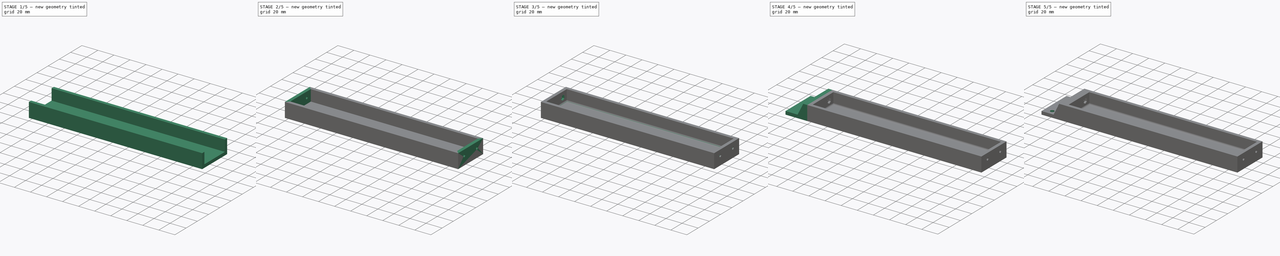
[diagram: build sequence overview — one tinted view per stage of 5, left to right]
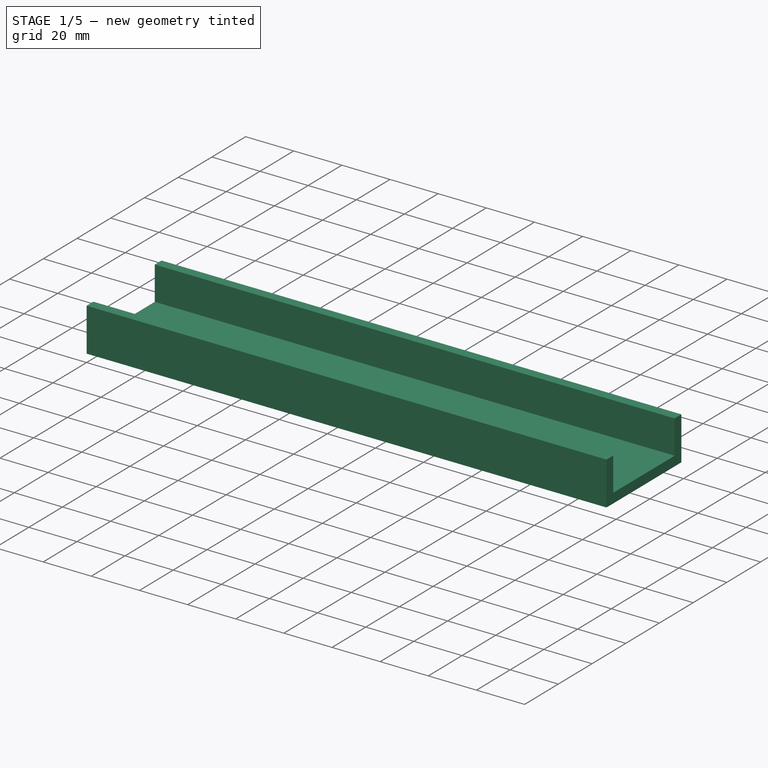
[diagram: stage 1 of 5 — iso view after this stage's code; geometry added in this stage tinted green]
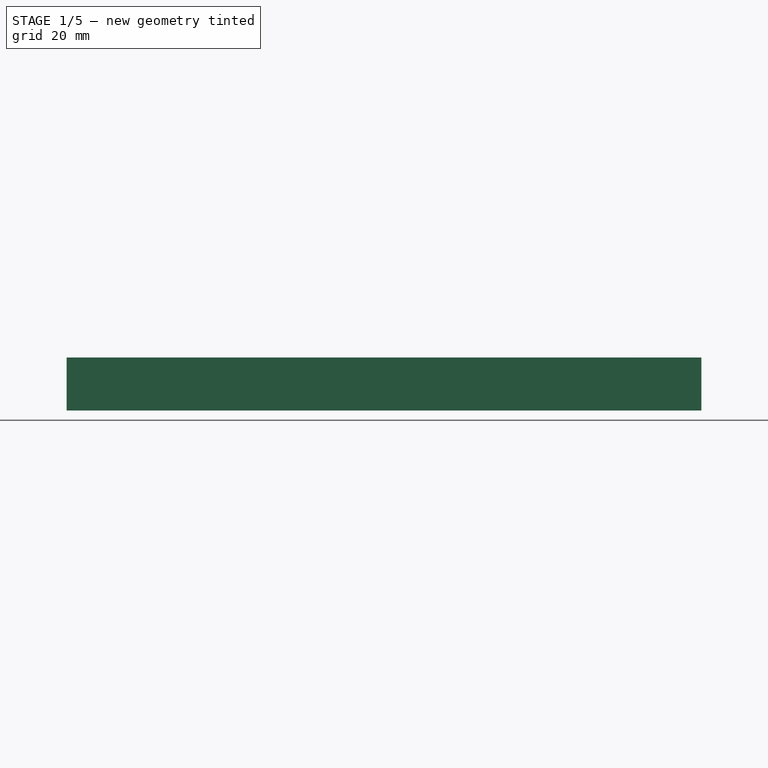
[diagram: stage 1 of 5 — front view after this stage's code; geometry added in this stage tinted green]
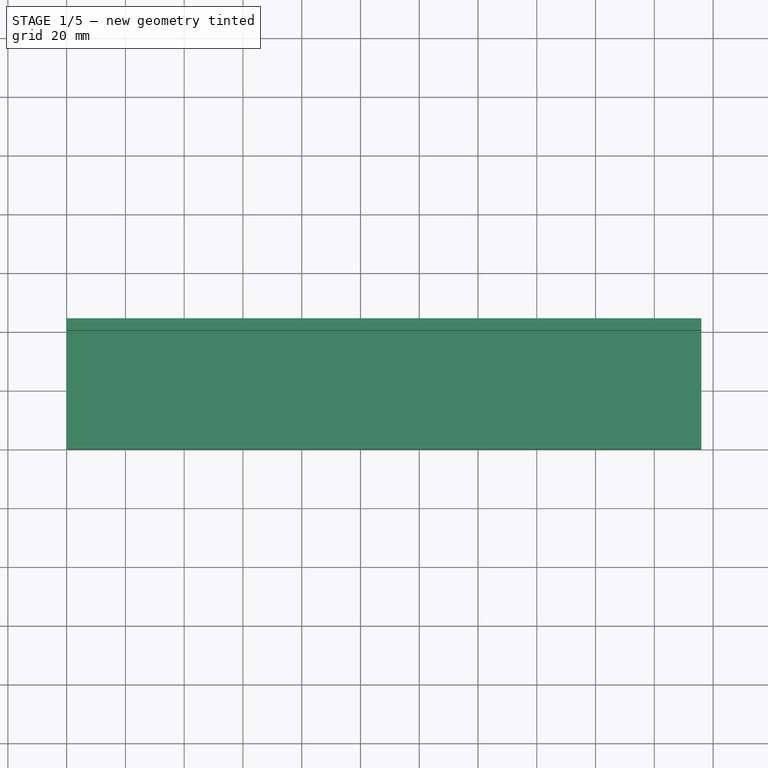
[diagram: stage 1 of 5 — top view after this stage's code; geometry added in this stage tinted green]
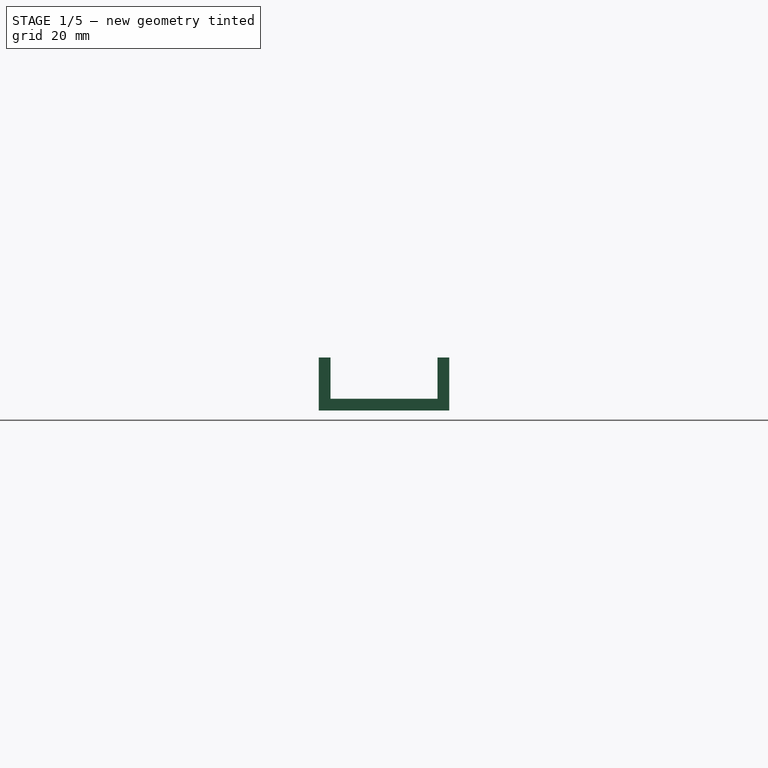
[diagram: stage 1 of 5 — right view after this stage's code; geometry added in this stage tinted green]
FCSTD DOCUMENT  (FreeCAD 1.0R39319 (Git))
Label: BlankPanel
License: All rights reserved
objects: Sketcher::SketchObject×15, PartDesign::Pad×9, PartDesign::Pocket×6, PartDesign::Fillet×2, PartDesign::Body×2, Part::Feature×1
note: 84 computed .brp shape members not serialized (recipe doc carries the construction recipe); baked Part::Feature solids carry a one-line shape summary decoded from their .brp

FEATURE [Sketcher::SketchObject] FacePlateSketch
  ArcFitTolerance = 1e-06
  FullyConstrained = true
  MakeInternals = false
  MapMode = 5
  sketch-geometry (4):
    g0: LineSegment StartX=0 StartY=0 StartZ=0 EndX=216 EndY=0 EndZ=0
    g1: LineSegment StartX=216 StartY=0 StartZ=0 EndX=216 EndY=44.45 EndZ=0
    g2: LineSegment StartX=216 StartY=44.45 StartZ=0 EndX=0 EndY=44.45 EndZ=0
    g3: LineSegment StartX=0 StartY=44.45 StartZ=0 EndX=0 EndY=0 EndZ=0
  constraints (11):
    c: Coincident(g0,g1)
    c: Coincident(g1,g2)
    c: Coincident(g2,g3)
    c: Coincident(g3,g0)
    c: Horizontal(g0)
    c: Vertical(g1)
    c: Horizontal(g2)
    c: Vertical(g3)
    c: DistanceX(g0,g0) = 216
    c: DistanceY(g1,g1) = 44.45
    c: Coincident(g0,g-1)
FEATURE [PartDesign::Pad] FacePlatePad
  Direction = (0,0,1)
  Length = 4
  Length2 = 10
  Profile = -> FacePlateSketch
  Refine = true
  Suppressed = false
  Type = 0
FEATURE [Sketcher::SketchObject] BottomWallSketch
  ArcFitTolerance = 1e-06
  AttachmentSupport = -> [FacePlatePad]
  FullyConstrained = true
  MakeInternals = false
  MapMode = 5
  Placement = pos=(0,0,4) rot=(0,0,1;0rad)
  sketch-geometry (4):
    g0: LineSegment StartX=0 StartY=0 StartZ=0 EndX=216 EndY=0 EndZ=0
    g1: LineSegment StartX=216 StartY=0 StartZ=0 EndX=216 EndY=4 EndZ=0
    g2: LineSegment StartX=216 StartY=4 StartZ=0 EndX=0 EndY=4 EndZ=0
    g3: LineSegment StartX=0 StartY=4 StartZ=0 EndX=0 EndY=0 EndZ=0
  constraints (11):
    c: Coincident(g0,g1)
    c: Coincident(g1,g2)
    c: Coincident(g2,g3)
    c: Coincident(g3,g0)
    c: Horizontal(g0)
    c: Vertical(g1)
    c: Horizontal(g2)
    c: Vertical(g3)
    c: DistanceX(g0,g0) = 216
    c: DistanceY(g1,g1) = 4
    c: Coincident(g0,g-1)
FEATURE [PartDesign::Pad] BottomWallPad
  BaseFeature = -> FacePlatePad
  Direction = (0,0,1)
  Length = 14
  Length2 = 10
  Profile = -> BottomWallSketch
  Refine = true
  Suppressed = false
  Type = 0
FEATURE [Sketcher::SketchObject] TopWallSketch
  ArcFitTolerance = 1e-06
  AttachmentSupport = -> [FacePlatePad]
  FullyConstrained = true
  MakeInternals = false
  MapMode = 5
  Placement = pos=(0,0,4) rot=(0,0,1;0rad)
  sketch-geometry (4):
    g0: LineSegment StartX=0 StartY=40.45 StartZ=0 EndX=216 EndY=40.45 EndZ=0
    g1: LineSegment StartX=216 StartY=40.45 StartZ=0 EndX=216 EndY=44.45 EndZ=0
    g2: LineSegment StartX=216 StartY=44.45 StartZ=0 EndX=0 EndY=44.45 EndZ=0
    g3: LineSegment StartX=0 StartY=44.45 StartZ=0 EndX=0 EndY=40.45 EndZ=0
  constraints (12):
    c: Coincident(g0,g1)
    c: Coincident(g1,g2)
    c: Coincident(g2,g3)
    c: Coincident(g3,g0)
    c: Horizontal(g0)
    c: Vertical(g1)
    c: Horizontal(g2)
    c: Vertical(g3)
    c: DistanceX(g0,g0) = 216
    c: DistanceY(g1,g1) = 4
    c: DistanceX(g-1,g0) = 0
    c: DistanceY(g-1,g0) = 40.45
FEATURE [PartDesign::Pad] TopWallPad
  BaseFeature = -> BottomWallPad
  Direction = (0,0,1)
  Length = 14
  Length2 = 10
  Profile = -> TopWallSketch
  Refine = true
  Suppressed = false
  Type = 0
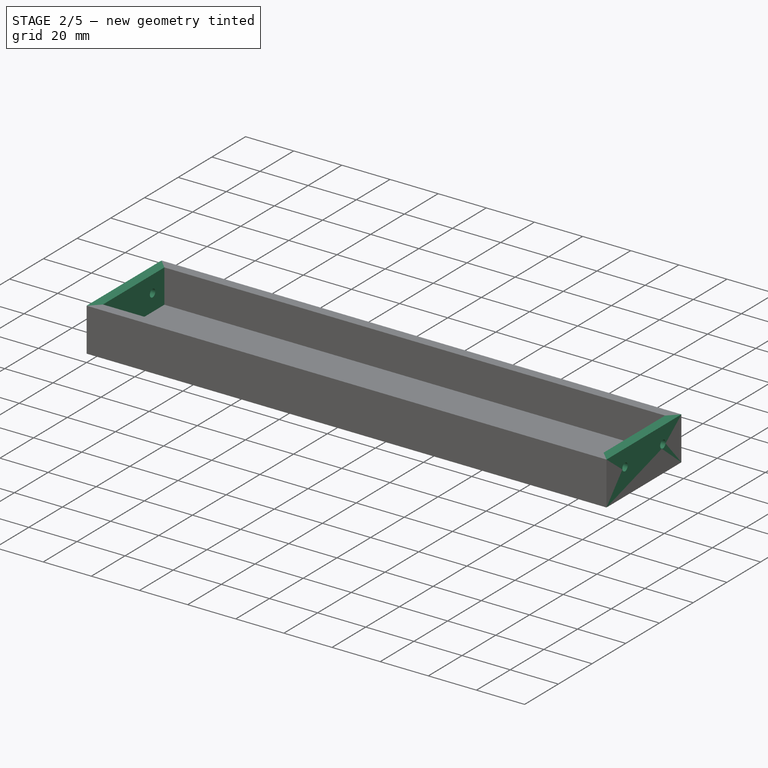
[diagram: stage 2 of 5 — iso view after this stage's code; geometry added in this stage tinted green]
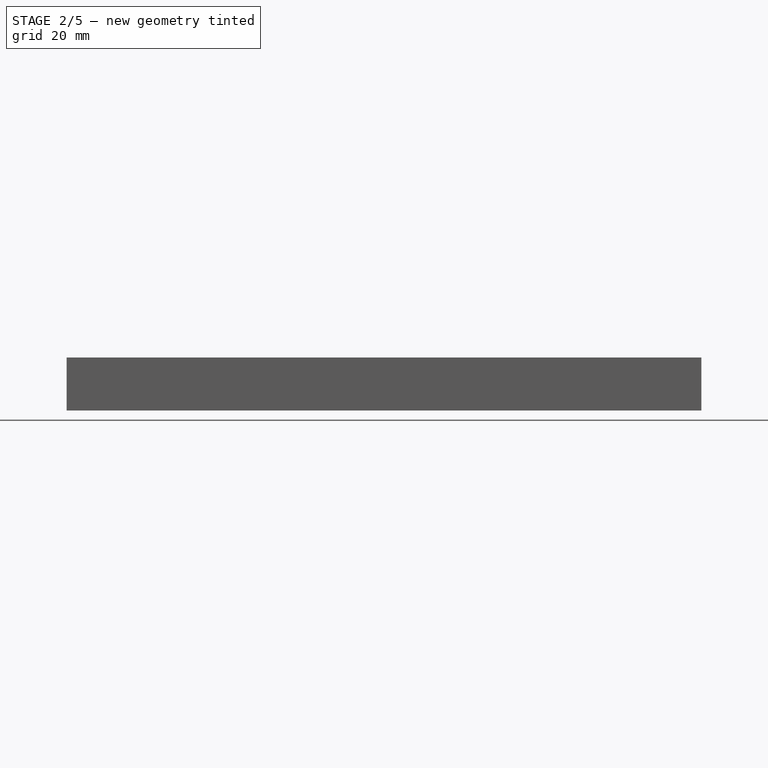
[diagram: stage 2 of 5 — front view after this stage's code; geometry added in this stage tinted green]
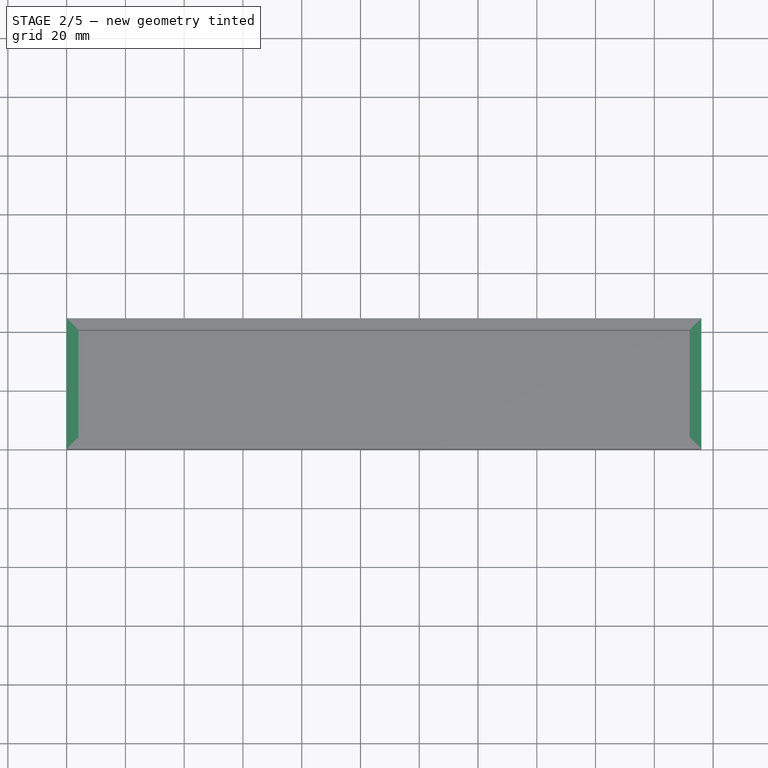
[diagram: stage 2 of 5 — top view after this stage's code; geometry added in this stage tinted green]
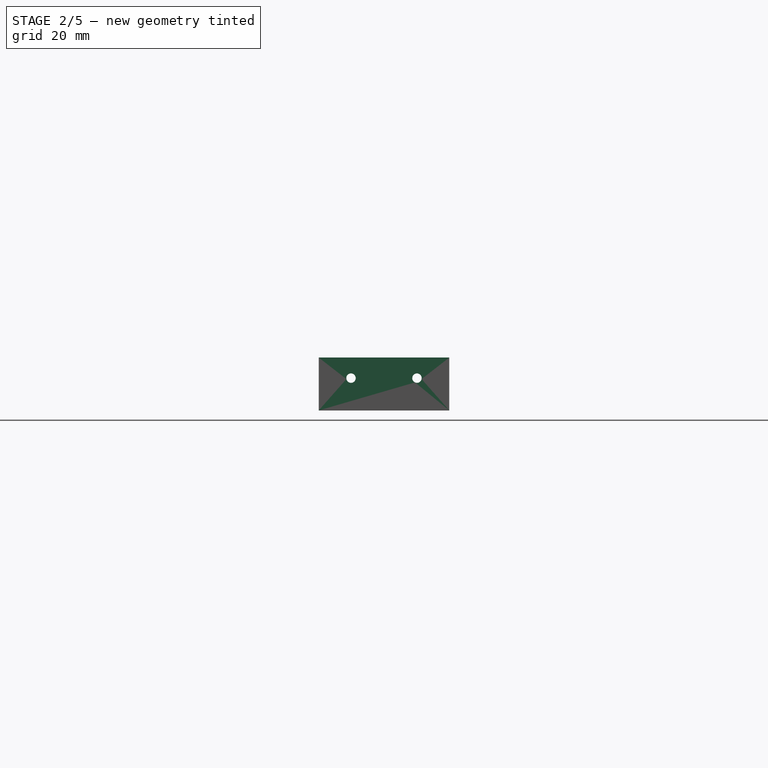
[diagram: stage 2 of 5 — right view after this stage's code; geometry added in this stage tinted green]
FEATURE [Sketcher::SketchObject] LeftSideWallSketch
  ArcFitTolerance = 1e-06
  AttachmentSupport = -> [FacePlatePad]
  FullyConstrained = true
  MakeInternals = false
  MapMode = 5
  Placement = pos=(0,0,4) rot=(0,0,1;0rad)
  sketch-geometry (4):
    g0: LineSegment StartX=0 StartY=0 StartZ=0 EndX=4 EndY=0 EndZ=0
    g1: LineSegment StartX=4 StartY=0 StartZ=0 EndX=4 EndY=44.45 EndZ=0
    g2: LineSegment StartX=4 StartY=44.45 StartZ=0 EndX=0 EndY=44.45 EndZ=0
    g3: LineSegment StartX=0 StartY=44.45 StartZ=0 EndX=0 EndY=0 EndZ=0
  constraints (11):
    c: Coincident(g0,g1)
    c: Coincident(g1,g2)
    c: Coincident(g2,g3)
    c: Coincident(g3,g0)
    c: Horizontal(g0)
    c: Vertical(g1)
    c: Horizontal(g2)
    c: Vertical(g3)
    c: DistanceX(g0,g0) = 4
    c: DistanceY(g1,g1) = 44.45
    c: Coincident(g0,g-1)
FEATURE [PartDesign::Pad] LeftSideWallPad
  BaseFeature = -> TopWallPad
  Direction = (0,0,1)
  Length = 14
  Length2 = 10
  Profile = -> LeftSideWallSketch
  Refine = true
  Suppressed = false
  Type = 0
FEATURE [Sketcher::SketchObject] RightSideWallSketch
  ArcFitTolerance = 1e-06
  AttachmentSupport = -> [FacePlatePad]
  FullyConstrained = true
  MakeInternals = false
  MapMode = 5
  Placement = pos=(0,0,4) rot=(0,0,1;0rad)
  sketch-geometry (4):
    g0: LineSegment StartX=212 StartY=0 StartZ=0 EndX=216 EndY=0 EndZ=0
    g1: LineSegment StartX=216 StartY=0 StartZ=0 EndX=216 EndY=44.45 EndZ=0
    g2: LineSegment StartX=216 StartY=44.45 StartZ=0 EndX=212 EndY=44.45 EndZ=0
    g3: LineSegment StartX=212 StartY=44.45 StartZ=0 EndX=212 EndY=0 EndZ=0
  constraints (12):
    c: Coincident(g0,g1)
    c: Coincident(g1,g2)
    c: Coincident(g2,g3)
    c: Coincident(g3,g0)
    c: Horizontal(g0)
    c: Vertical(g1)
    c: Horizontal(g2)
    c: Vertical(g3)
    c: DistanceX(g0,g0) = 4
    c: DistanceY(g1,g1) = 44.45
    c: DistanceX(g-1,g0) = 212
    c: DistanceY(g-1,g0) = 0
FEATURE [PartDesign::Pad] RightSideWallPad
  BaseFeature = -> LeftSideWallPad
  Direction = (0,0,1)
  Length = 14
  Length2 = 10
  Profile = -> RightSideWallSketch
  Refine = true
  Suppressed = false
  Type = 0
FEATURE [Sketcher::SketchObject] LeftJointHolesSketch
  ArcFitTolerance = 1e-06
  AttachmentSupport = -> [RightSideWallPad]
  FullyConstrained = true
  MakeInternals = false
  MapMode = 5
  Placement = pos=(0,0,0) rot=(0.57735,-0.57735,-0.57735;2.0944rad)
  sketch-geometry (2):
    g0: Circle CenterX=-11 CenterY=11 CenterZ=0 NormalX=0 NormalY=0 NormalZ=1 AngleXU=0 Radius=1.6
    g1: Circle CenterX=-33.45 CenterY=11 CenterZ=0 NormalX=0 NormalY=0 NormalZ=1 AngleXU=0 Radius=1.6
  constraints (6):
    c: Radius(g0) = 1.6
    c: Radius(g1) = 1.6
    c: DistanceX(g-1,g0) = -11
    c: DistanceY(g-1,g0) = 11
    c: DistanceX(g-1,g1) = -33.45
    c: DistanceY(g-1,g1) = 11
FEATURE [PartDesign::Pocket] LeftJointHolesPocket
  BaseFeature = -> RightSideWallPad
  Direction = (1,0,0)
  Length = 4
  Length2 = 5
  Profile = -> LeftJointHolesSketch
  Refine = true
  Suppressed = false
  Type = 0
FEATURE [Sketcher::SketchObject] RightJointHolesSketch
  ArcFitTolerance = 1e-06
  AttachmentSupport = -> [LeftJointHolesPocket]
  FullyConstrained = true
  MakeInternals = false
  MapMode = 5
  Placement = pos=(216,0,0) rot=(0.57735,0.57735,0.57735;2.0944rad)
  sketch-geometry (2):
    g0: Circle CenterX=11 CenterY=11 CenterZ=0 NormalX=0 NormalY=0 NormalZ=1 AngleXU=0 Radius=1.6
    g1: Circle CenterX=33.45 CenterY=11 CenterZ=0 NormalX=0 NormalY=0 NormalZ=1 AngleXU=0 Radius=1.6
  constraints (6):
    c: Radius(g0) = 1.6
    c: Radius(g1) = 1.6
    c: DistanceX(g-1,g0) = 11
    c: DistanceY(g-1,g0) = 11
    c: DistanceX(g-1,g1) = 33.45
    c: DistanceY(g-1,g1) = 11
FEATURE [PartDesign::Pocket] RightJointHolesPocket
  BaseFeature = -> LeftJointHolesPocket
  Direction = (-1,0,0)
  Length = 4
  Length2 = 5
  Profile = -> RightJointHolesSketch
  Refine = true
  Suppressed = false
  Type = 0
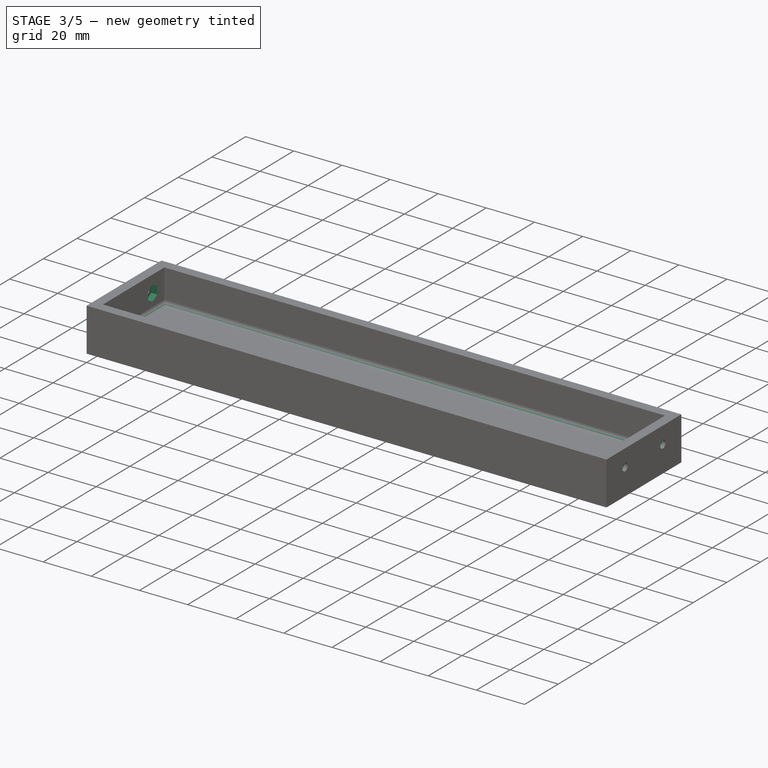
[diagram: stage 3 of 5 — iso view after this stage's code; geometry added in this stage tinted green]
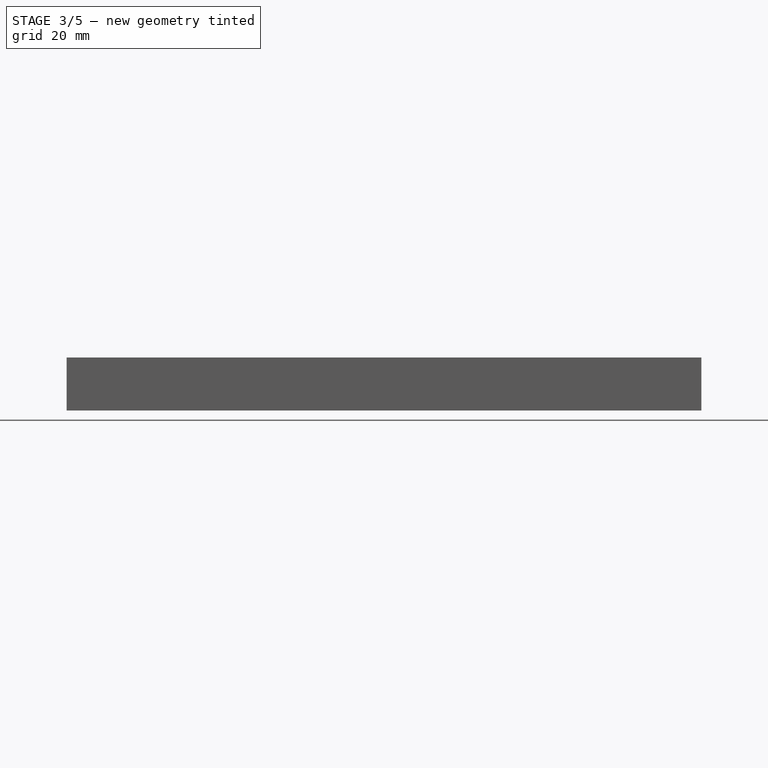
[diagram: stage 3 of 5 — front view after this stage's code; geometry added in this stage tinted green]
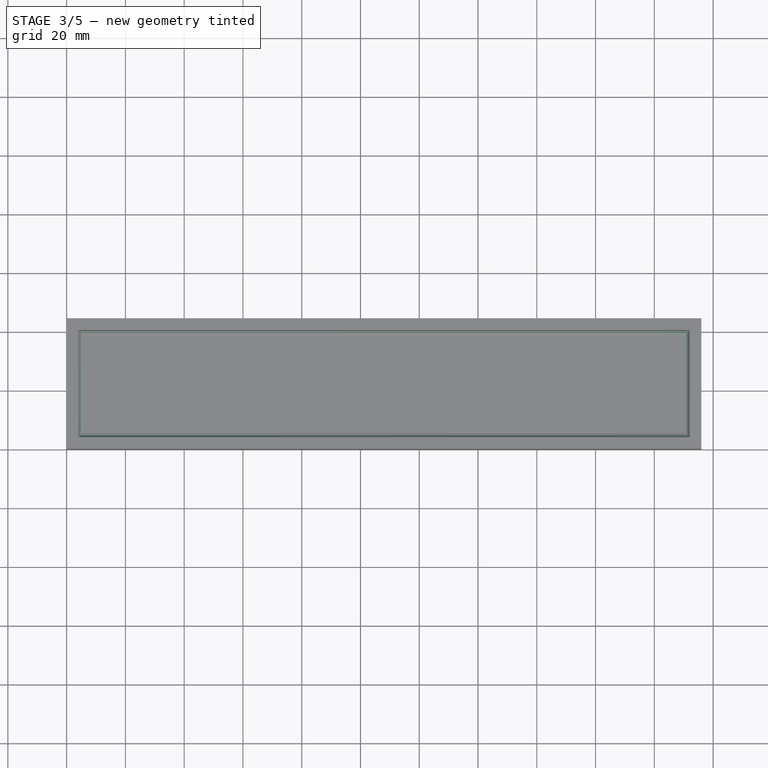
[diagram: stage 3 of 5 — top view after this stage's code; geometry added in this stage tinted green]
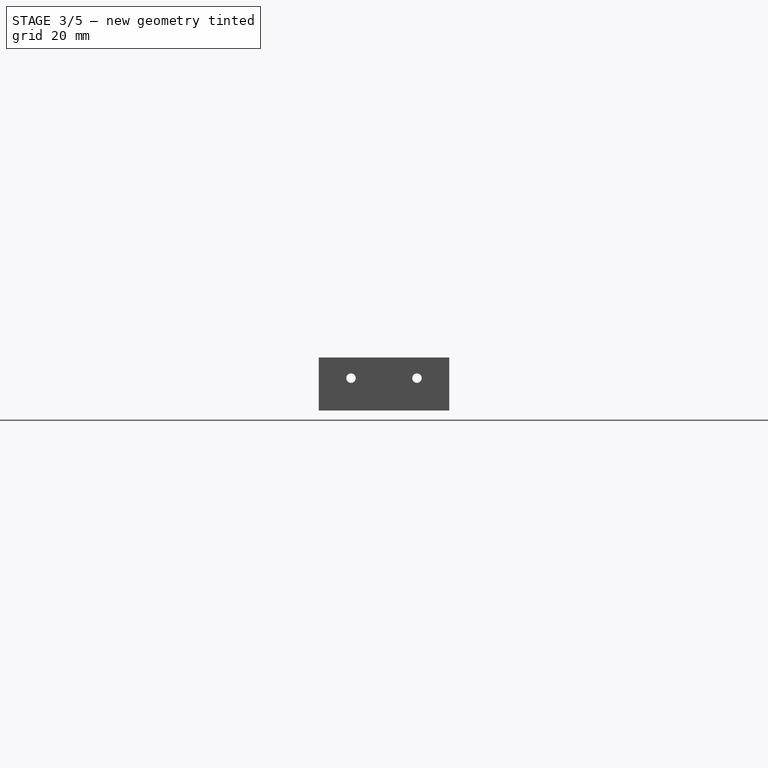
[diagram: stage 3 of 5 — right view after this stage's code; geometry added in this stage tinted green]
FEATURE [Sketcher::SketchObject] LeftNutRecessSketch
  ArcFitTolerance = 1e-06
  AttachmentSupport = -> [RightJointHolesPocket]
  FullyConstrained = false
  MakeInternals = false
  MapMode = 5
  Placement = pos=(4,0,0) rot=(0.57735,0.57735,0.57735;2.0944rad)
  sketch-geometry (12):
    g0: LineSegment StartX=13.75 StartY=12.5877 StartZ=0 EndX=11 EndY=14.1754 EndZ=0
    g1: LineSegment StartX=11 StartY=14.1754 StartZ=0 EndX=8.25 EndY=12.5877 EndZ=0
    g2: LineSegment StartX=8.25 StartY=12.5877 StartZ=0 EndX=8.25 EndY=9.41229 EndZ=0
    g3: LineSegment StartX=8.25 StartY=9.41229 StartZ=0 EndX=11 EndY=7.82457 EndZ=0
    g4: LineSegment StartX=11 StartY=7.82457 StartZ=0 EndX=13.75 EndY=9.41229 EndZ=0
    g5: LineSegment StartX=13.75 StartY=9.41229 StartZ=0 EndX=13.75 EndY=12.5877 EndZ=0
    g6: LineSegment StartX=36.2 StartY=12.5877 StartZ=0 EndX=33.45 EndY=14.1754 EndZ=0
    g7: LineSegment StartX=33.45 StartY=14.1754 StartZ=0 EndX=30.7 EndY=12.5877 EndZ=0
    g8: LineSegment StartX=30.7 StartY=12.5877 StartZ=0 EndX=30.7 EndY=9.41229 EndZ=0
    g9: LineSegment StartX=30.7 StartY=9.41229 StartZ=0 EndX=33.45 EndY=7.82457 EndZ=0
    g10: LineSegment StartX=33.45 StartY=7.82457 StartZ=0 EndX=36.2 EndY=9.41229 EndZ=0
    g11: LineSegment StartX=36.2 StartY=9.41229 StartZ=0 EndX=36.2 EndY=12.5877 EndZ=0
  constraints (12):
    c: Coincident(g0,g1)
    c: Coincident(g1,g2)
    c: Coincident(g2,g3)
    c: Coincident(g3,g4)
    c: Coincident(g4,g5)
    c: Coincident(g5,g0)
    c: Coincident(g6,g7)
    c: Coincident(g7,g8)
    c: Coincident(g8,g9)
    c: Coincident(g9,g10)
    c: Coincident(g10,g11)
    c: Coincident(g11,g6)
FEATURE [PartDesign::Pocket] LeftNutRecessPocket
  BaseFeature = -> RightJointHolesPocket
  Direction = (-1,0,0)
  Length = 2.5
  Length2 = 5
  Profile = -> LeftNutRecessSketch
  Refine = true
  Suppressed = false
  Type = 0
FEATURE [Sketcher::SketchObject] RightNutRecessSketch
  ArcFitTolerance = 1e-06
  AttachmentSupport = -> [LeftNutRecessPocket]
  FullyConstrained = false
  MakeInternals = false
  MapMode = 5
  Placement = pos=(212,0,0) rot=(0.57735,-0.57735,-0.57735;2.0944rad)
  sketch-geometry (12):
    g0: LineSegment StartX=-8.25 StartY=12.5877 StartZ=0 EndX=-11 EndY=14.1754 EndZ=0
    g1: LineSegment StartX=-11 StartY=14.1754 StartZ=0 EndX=-13.75 EndY=12.5877 EndZ=0
    g2: LineSegment StartX=-13.75 StartY=12.5877 StartZ=0 EndX=-13.75 EndY=9.41229 EndZ=0
    g3: LineSegment StartX=-13.75 StartY=9.41229 StartZ=0 EndX=-11 EndY=7.82457 EndZ=0
    g4: LineSegment StartX=-11 StartY=7.82457 StartZ=0 EndX=-8.25 EndY=9.41229 EndZ=0
    g5: LineSegment StartX=-8.25 StartY=9.41229 StartZ=0 EndX=-8.25 EndY=12.5877 EndZ=0
    g6: LineSegment StartX=-30.7 StartY=12.5877 StartZ=0 EndX=-33.45 EndY=14.1754 EndZ=0
    g7: LineSegment StartX=-33.45 StartY=14.1754 StartZ=0 EndX=-36.2 EndY=12.5877 EndZ=0
    g8: LineSegment StartX=-36.2 StartY=12.5877 StartZ=0 EndX=-36.2 EndY=9.41229 EndZ=0
    g9: LineSegment StartX=-36.2 StartY=9.41229 StartZ=0 EndX=-33.45 EndY=7.82457 EndZ=0
    g10: LineSegment StartX=-33.45 StartY=7.82457 StartZ=0 EndX=-30.7 EndY=9.41229 EndZ=0
    g11: LineSegment StartX=-30.7 StartY=9.41229 StartZ=0 EndX=-30.7 EndY=12.5877 EndZ=0
  constraints (12):
    c: Coincident(g0,g1)
    c: Coincident(g1,g2)
    c: Coincident(g2,g3)
    c: Coincident(g3,g4)
    c: Coincident(g4,g5)
    c: Coincident(g5,g0)
    c: Coincident(g6,g7)
    c: Coincident(g7,g8)
    c: Coincident(g8,g9)
    c: Coincident(g9,g10)
    c: Coincident(g10,g11)
    c: Coincident(g11,g6)
FEATURE [PartDesign::Pocket] RightNutRecessPocket
  BaseFeature = -> LeftNutRecessPocket
  Direction = (1,0,0)
  Length = 2.5
  Length2 = 5
  Profile = -> RightNutRecessSketch
  Refine = true
  Suppressed = false
  Type = 0
FEATURE [PartDesign::Body] LeftTabBody
  AllowCompound = false
  Group = -> [TabFacePlateSketch,TabFacePlatePad,TabFlangeSketch,TabFlangePad,BottomGussetSketch,BottomGussetPad,TopGussetSketch,TopGussetPad,RailHolesSketch,RailHolesPocket,TabJointHolesSketch,TabJointHolesPocket,TabInsideFillets]
  Origin = -> Origin001
  Tip = -> TabInsideFillets
FEATURE [Part::Feature] RightTabBody
  shape: bbox 27 x 44.45 x 18 mm, 24 faces (baked)
FEATURE [PartDesign::Fillet] InsideFillets
  Base = -> RightNutRecessPocket [Edge25,Edge28,Edge42,Edge44]
  BaseFeature = -> RightNutRecessPocket
  Radius = 2
  SupportTransform = false
  Suppressed = false
  UseAllEdges = false
FEATURE [PartDesign::Body] CenterPanelBody
  AllowCompound = false
  Group = -> [FacePlateSketch,FacePlatePad,BottomWallSketch,BottomWallPad,TopWallSketch,TopWallPad,LeftSideWallSketch,LeftSideWallPad,RightSideWallSketch,RightSideWallPad,LeftJointHolesSketch,LeftJointHolesPocket,RightJointHolesSketch,RightJointHolesPocket,LeftNutRecessSketch,LeftNutRecessPocket,RightNutRecessSketch,RightNutRecessPocket,InsideFillets]
  Origin = -> Origin
  Tip = -> InsideFillets
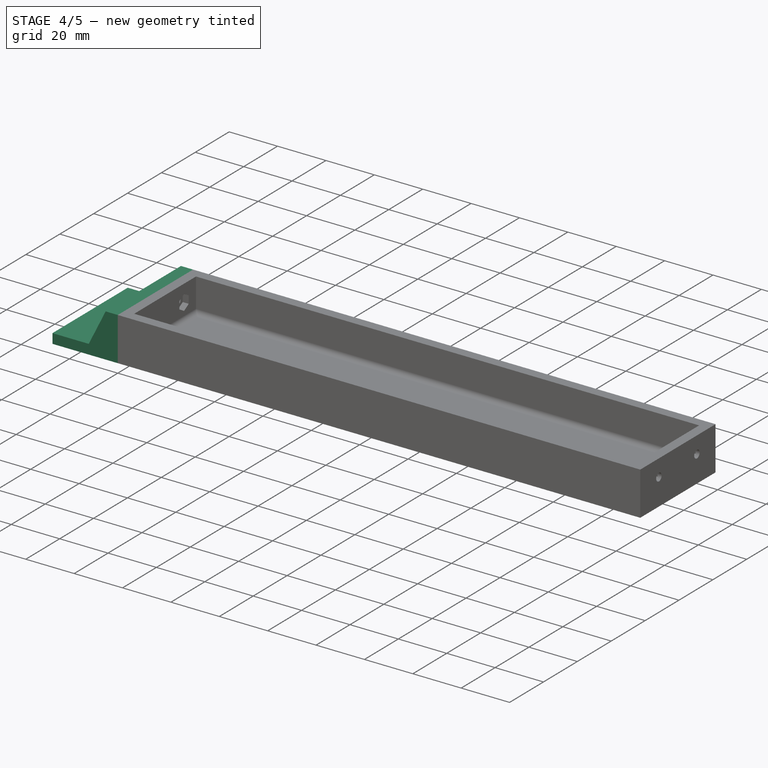
[diagram: stage 4 of 5 — iso view after this stage's code; geometry added in this stage tinted green]
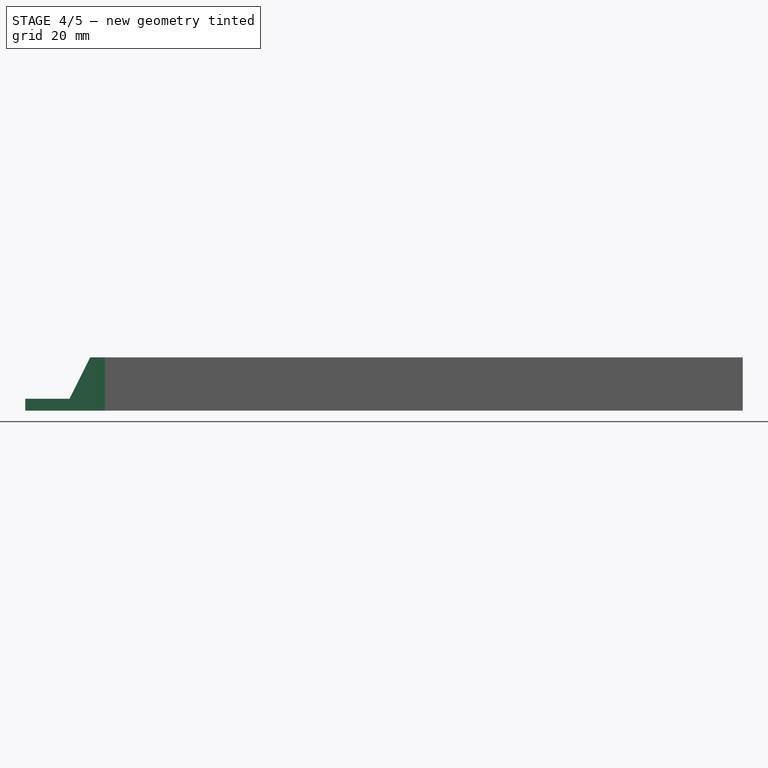
[diagram: stage 4 of 5 — front view after this stage's code; geometry added in this stage tinted green]
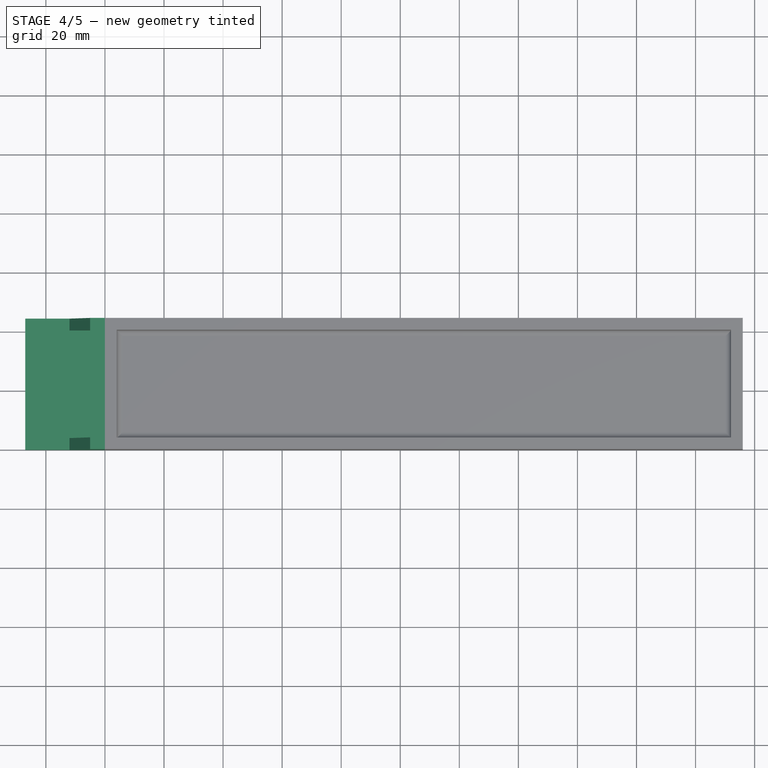
[diagram: stage 4 of 5 — top view after this stage's code; geometry added in this stage tinted green]
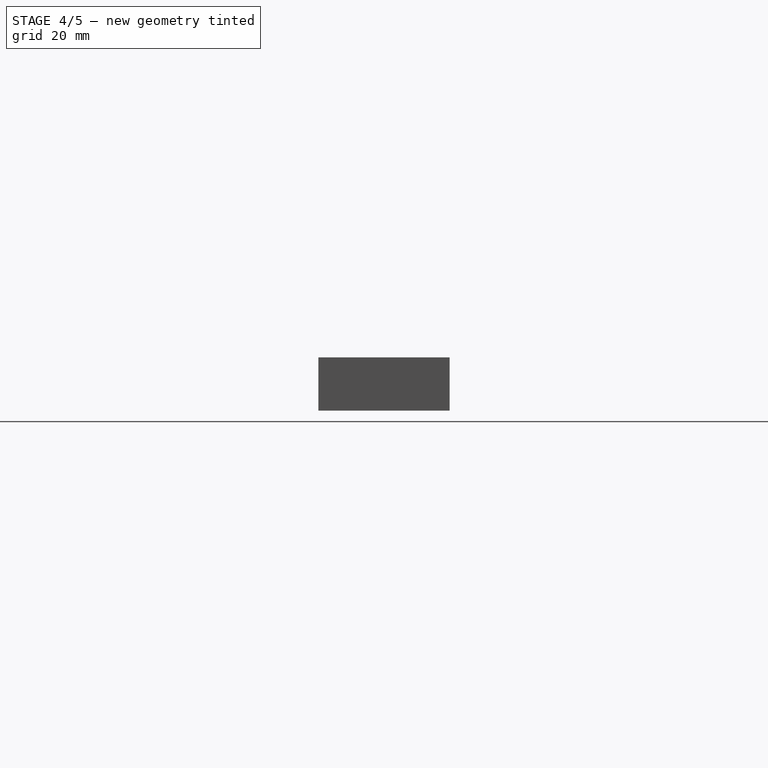
[diagram: stage 4 of 5 — right view after this stage's code; geometry added in this stage tinted green]
FEATURE [Sketcher::SketchObject] TabFacePlateSketch
  ArcFitTolerance = 1e-06
  FullyConstrained = true
  MakeInternals = false
  MapMode = 5
  sketch-geometry (4):
    g0: LineSegment StartX=-27 StartY=0 StartZ=0 EndX=0 EndY=0 EndZ=0
    g1: LineSegment StartX=0 StartY=0 StartZ=0 EndX=0 EndY=44.45 EndZ=0
    g2: LineSegment StartX=0 StartY=44.45 StartZ=0 EndX=-27 EndY=44.45 EndZ=0
    g3: LineSegment StartX=-27 StartY=44.45 StartZ=0 EndX=-27 EndY=0 EndZ=0
  constraints (11):
    c: Coincident(g0,g1)
    c: Coincident(g1,g2)
    c: Coincident(g2,g3)
    c: Coincident(g3,g0)
    c: Horizontal(g0)
    c: Vertical(g1)
    c: Horizontal(g2)
    c: Vertical(g3)
    c: DistanceX(g0,g0) = 27
    c: DistanceY(g1,g1) = 44.45
    c: Coincident(g0,g-1)
FEATURE [PartDesign::Pad] TabFacePlatePad
  Direction = (0,0,1)
  Length = 4
  Length2 = 10
  Profile = -> TabFacePlateSketch
  Refine = true
  Suppressed = false
  Type = 0
FEATURE [Sketcher::SketchObject] TabFlangeSketch
  ArcFitTolerance = 1e-06
  AttachmentSupport = -> [TabFacePlatePad]
  FullyConstrained = true
  MakeInternals = false
  MapMode = 5
  Placement = pos=(0,0,4) rot=(0,0,1;0rad)
  sketch-geometry (4):
    g0: LineSegment StartX=-5 StartY=0 StartZ=0 EndX=0 EndY=0 EndZ=0
    g1: LineSegment StartX=0 StartY=0 StartZ=0 EndX=0 EndY=44.45 EndZ=0
    g2: LineSegment StartX=0 StartY=44.45 StartZ=0 EndX=-5 EndY=44.45 EndZ=0
    g3: LineSegment StartX=-5 StartY=44.45 StartZ=0 EndX=-5 EndY=0 EndZ=0
  constraints (11):
    c: Coincident(g0,g1)
    c: Coincident(g1,g2)
    c: Coincident(g2,g3)
    c: Coincident(g3,g0)
    c: Horizontal(g0)
    c: Vertical(g1)
    c: Horizontal(g2)
    c: Vertical(g3)
    c: DistanceX(g0,g0) = 5
    c: DistanceY(g1,g1) = 44.45
    c: Coincident(g0,g-1)
FEATURE [PartDesign::Pad] TabFlangePad
  BaseFeature = -> TabFacePlatePad
  Direction = (0,0,1)
  Length = 14
  Length2 = 10
  Profile = -> TabFlangeSketch
  Refine = true
  Suppressed = false
  Type = 0
FEATURE [Sketcher::SketchObject] BottomGussetSketch
  ArcFitTolerance = 1e-06
  AttachmentSupport = -> [TabFlangePad]
  FullyConstrained = true
  MakeInternals = false
  MapMode = 5
  Placement = pos=(0,0,0) rot=(1,0,0;1.5708rad)
  sketch-geometry (3):
    g0: LineSegment StartX=-12 StartY=4 StartZ=0 EndX=-5 EndY=4 EndZ=0
    g1: LineSegment StartX=-5 StartY=4 StartZ=0 EndX=-5 EndY=18 EndZ=0
    g2: LineSegment StartX=-5 StartY=18 StartZ=0 EndX=-12 EndY=4 EndZ=0
  constraints (9):
    c: Coincident(g0,g1)
    c: Coincident(g1,g2)
    c: Coincident(g2,g0)
    c: Horizontal(g0)
    c: Vertical(g1)
    c: DistanceX(g0,g0) = 7
    c: DistanceY(g1,g1) = 14
    c: DistanceX(g-1,g1) = -5
    c: DistanceY(g-1,g1) = 4
FEATURE [PartDesign::Pad] BottomGussetPad
  BaseFeature = -> TabFlangePad
  Direction = (0,-1,2e-16)
  Length = 4
  Length2 = 10
  Profile = -> BottomGussetSketch
  Refine = true
  Reversed = true
  Suppressed = false
  Type = 0
FEATURE [Sketcher::SketchObject] TopGussetSketch
  ArcFitTolerance = 1e-06
  AttachmentSupport = -> [BottomGussetPad]
  FullyConstrained = true
  MakeInternals = false
  MapMode = 5
  Placement = pos=(0,44.45,0) rot=(0,0.707107,0.707107;3.14159rad)
  sketch-geometry (3):
    g0: LineSegment StartX=12 StartY=4 StartZ=0 EndX=5 EndY=4 EndZ=0
    g1: LineSegment StartX=5 StartY=4 StartZ=0 EndX=5 EndY=18 EndZ=0
    g2: LineSegment StartX=5 StartY=18 StartZ=0 EndX=12 EndY=4 EndZ=0
  constraints (9):
    c: Coincident(g0,g1)
    c: Coincident(g1,g2)
    c: Coincident(g2,g0)
    c: Horizontal(g0)
    c: Vertical(g1)
    c: DistanceX(g0,g0) = -7
    c: DistanceY(g1,g1) = 14
    c: DistanceX(g-1,g1) = 5
    c: DistanceY(g-1,g1) = 4
FEATURE [PartDesign::Pad] TopGussetPad
  BaseFeature = -> BottomGussetPad
  Direction = (0,1,-2e-16)
  Length = 4
  Length2 = 10
  Profile = -> TopGussetSketch
  Refine = true
  Reversed = true
  Suppressed = false
  Type = 0
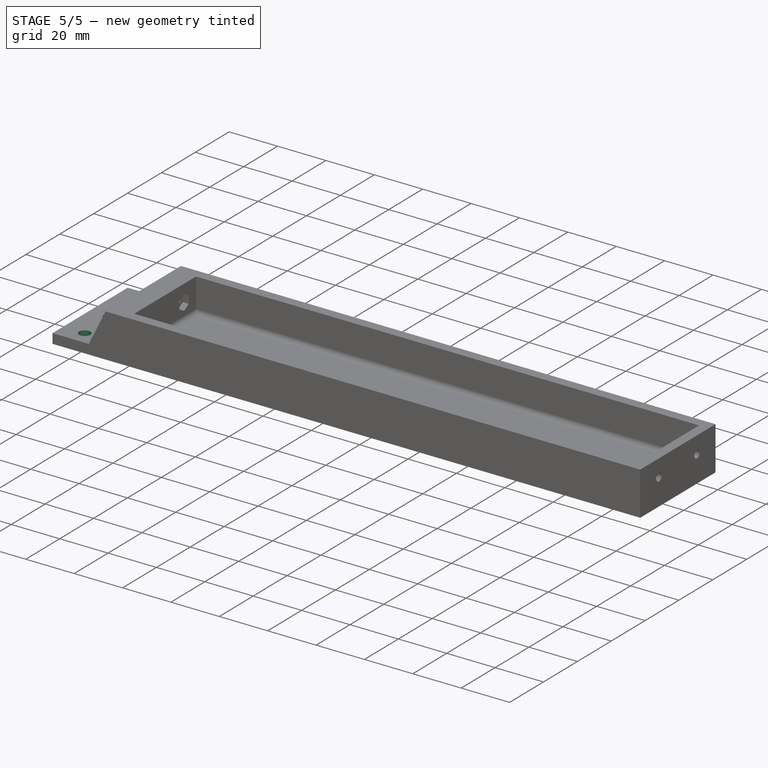
[diagram: stage 5 of 5 — iso view after this stage's code; geometry added in this stage tinted green]
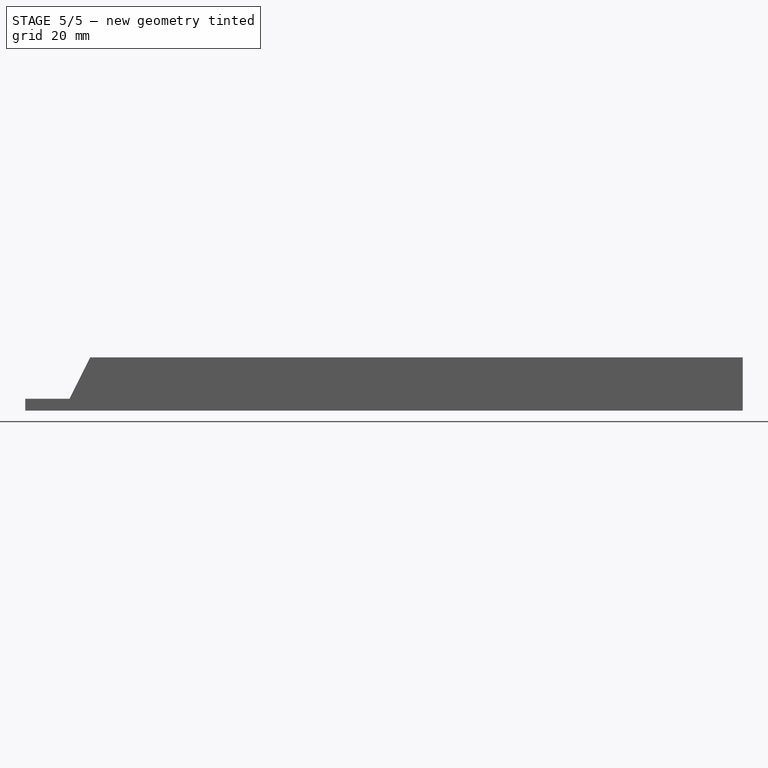
[diagram: stage 5 of 5 — front view after this stage's code; geometry added in this stage tinted green]
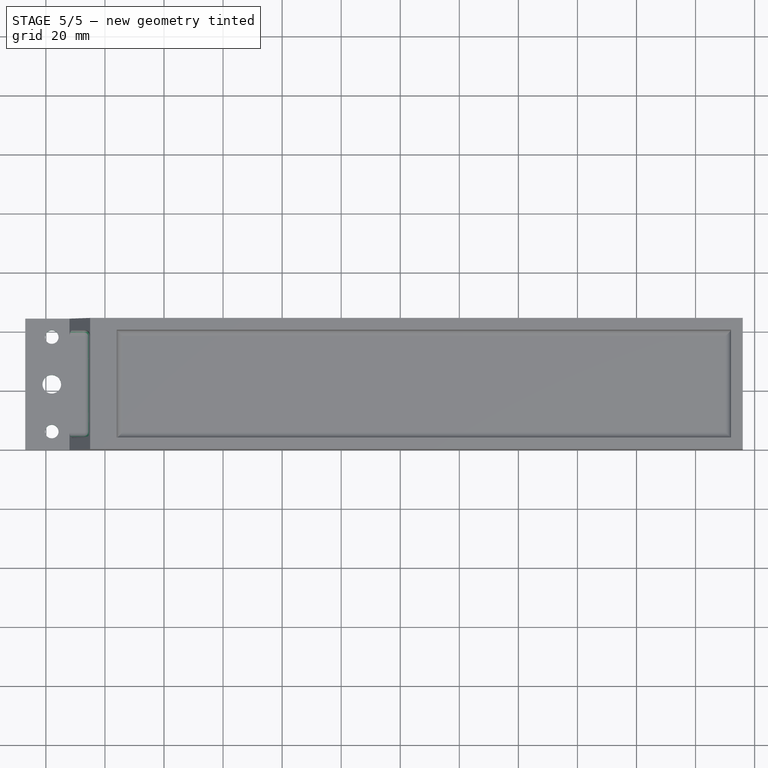
[diagram: stage 5 of 5 — top view after this stage's code; geometry added in this stage tinted green]
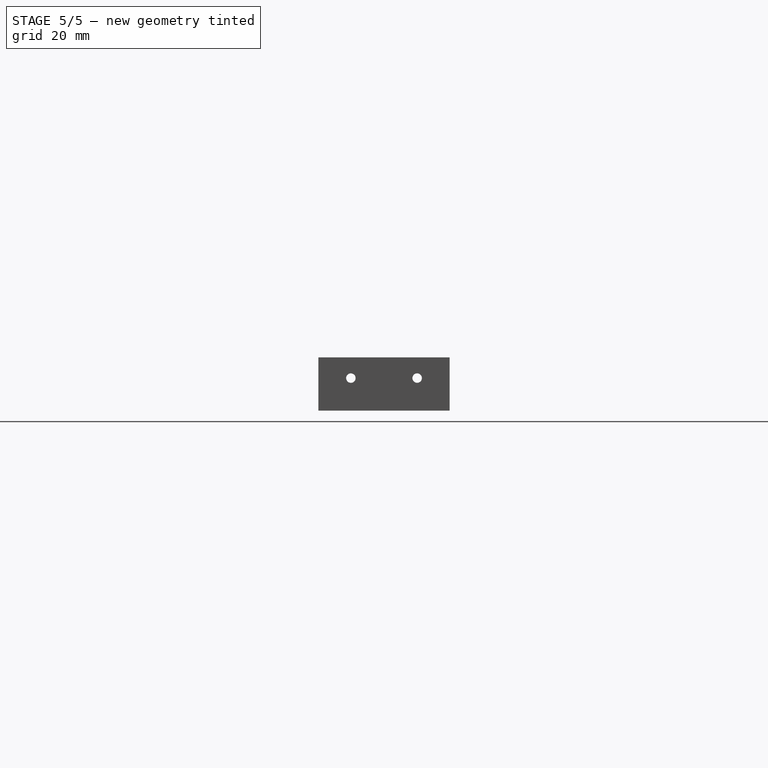
[diagram: stage 5 of 5 — right view after this stage's code; geometry added in this stage tinted green]
FEATURE [Sketcher::SketchObject] RailHolesSketch
  ArcFitTolerance = 1e-06
  AttachmentSupport = -> [TopGussetPad]
  FullyConstrained = true
  MakeInternals = false
  MapMode = 5
  Placement = pos=(0,0,0) rot=(1,0,0;3.14159rad)
  sketch-geometry (3):
    g0: Circle CenterX=-18 CenterY=-6.225 CenterZ=0 NormalX=0 NormalY=0 NormalZ=1 AngleXU=0 Radius=2.3
    g1: Circle CenterX=-18 CenterY=-22.225 CenterZ=0 NormalX=0 NormalY=0 NormalZ=1 AngleXU=0 Radius=3.15
    g2: Circle CenterX=-18 CenterY=-38.225 CenterZ=0 NormalX=0 NormalY=0 NormalZ=1 AngleXU=0 Radius=2.3
  constraints (9):
    c: Radius(g0) = 2.3
    c: DistanceX(g-1,g0) = -18
    c: DistanceY(g-1,g0) = -6.225
    c: Radius(g1) = 3.15
    c: DistanceX(g-1,g1) = -18
    c: DistanceY(g-1,g1) = -22.225
    c: Radius(g2) = 2.3
    c: DistanceX(g-1,g2) = -18
    c: DistanceY(g-1,g2) = -38.225
FEATURE [PartDesign::Pocket] RailHolesPocket
  BaseFeature = -> TopGussetPad
  Direction = (0,0,1)
  Length = 5
  Length2 = 5
  Profile = -> RailHolesSketch
  Refine = true
  Suppressed = false
  Type = 1
FEATURE [Sketcher::SketchObject] TabJointHolesSketch
  ArcFitTolerance = 1e-06
  AttachmentSupport = -> [RailHolesPocket]
  FullyConstrained = true
  MakeInternals = false
  MapMode = 5
  Placement = pos=(-5,0,0) rot=(0.57735,-0.57735,-0.57735;2.0944rad)
  sketch-geometry (2):
    g0: Circle CenterX=-11 CenterY=11 CenterZ=0 NormalX=0 NormalY=0 NormalZ=1 AngleXU=0 Radius=1.6
    g1: Circle CenterX=-33.45 CenterY=11 CenterZ=0 NormalX=0 NormalY=0 NormalZ=1 AngleXU=0 Radius=1.6
  constraints (6):
    c: Radius(g0) = 1.6
    c: DistanceX(g-1,g0) = -11
    c: DistanceY(g-1,g0) = 11
    c: Radius(g1) = 1.6
    c: DistanceX(g-1,g1) = -33.45
    c: DistanceY(g-1,g1) = 11
FEATURE [PartDesign::Pocket] TabJointHolesPocket
  BaseFeature = -> RailHolesPocket
  Direction = (1,0,0)
  Length = 5
  Length2 = 5
  Profile = -> TabJointHolesSketch
  Refine = true
  Suppressed = false
  Type = 1
FEATURE [PartDesign::Fillet] TabInsideFillets
  Base = -> TabJointHolesPocket [Edge21,Edge38,Edge39,Edge20,Edge22]
  BaseFeature = -> TabJointHolesPocket
  Radius = 2
  SupportTransform = false
  Suppressed = false
  UseAllEdges = false
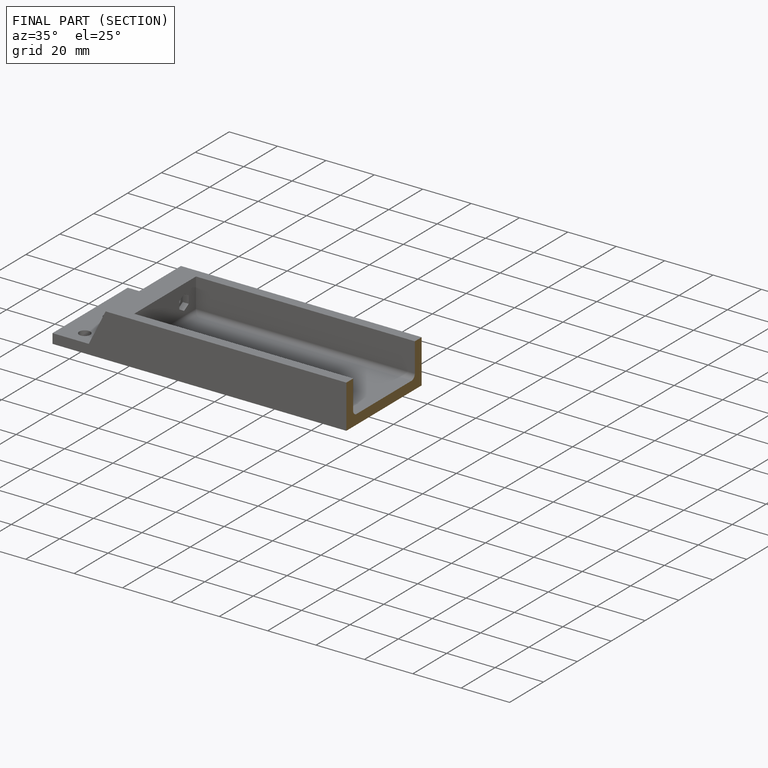
[diagram: finished part — half-section view (interior)]
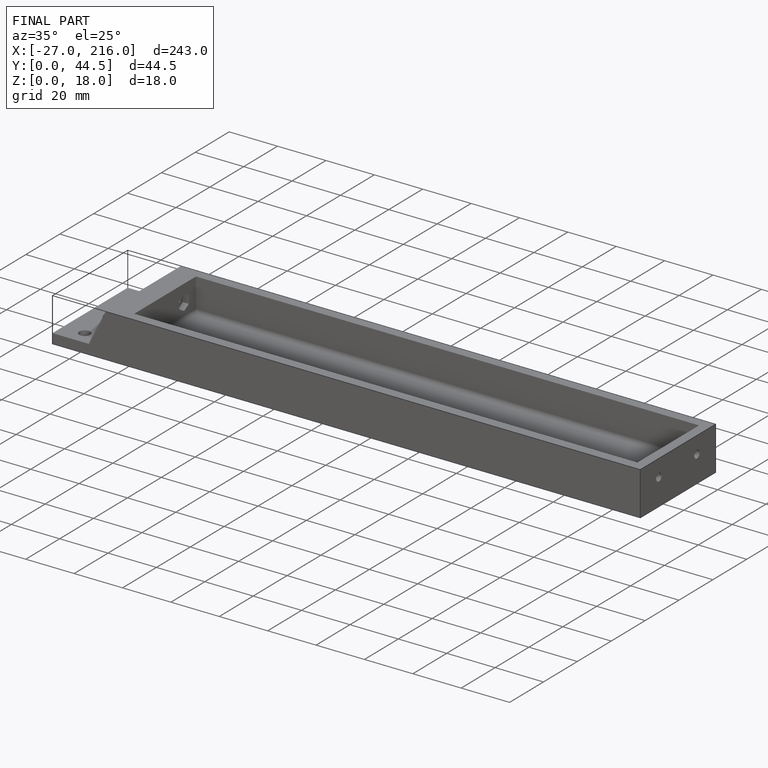
[diagram: finished part — iso view with bounding-box wireframe]
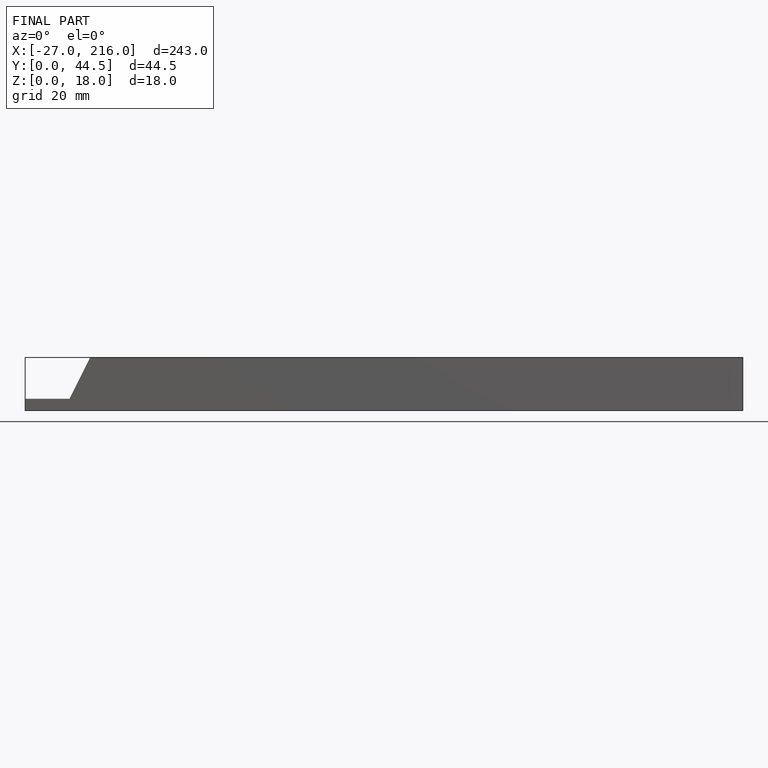
[diagram: finished part — front view with bounding-box wireframe]
